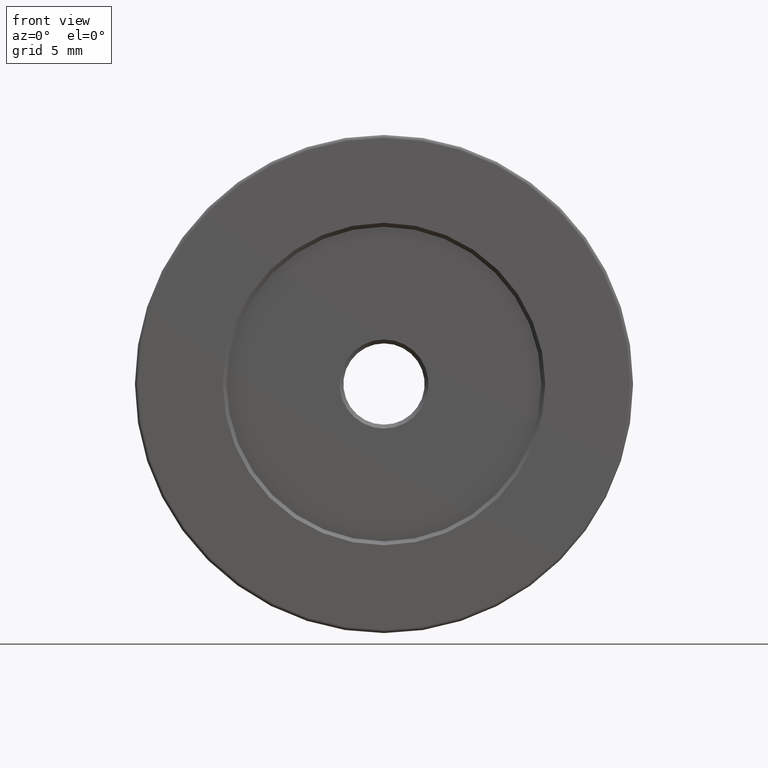
[diagram: clean part render]
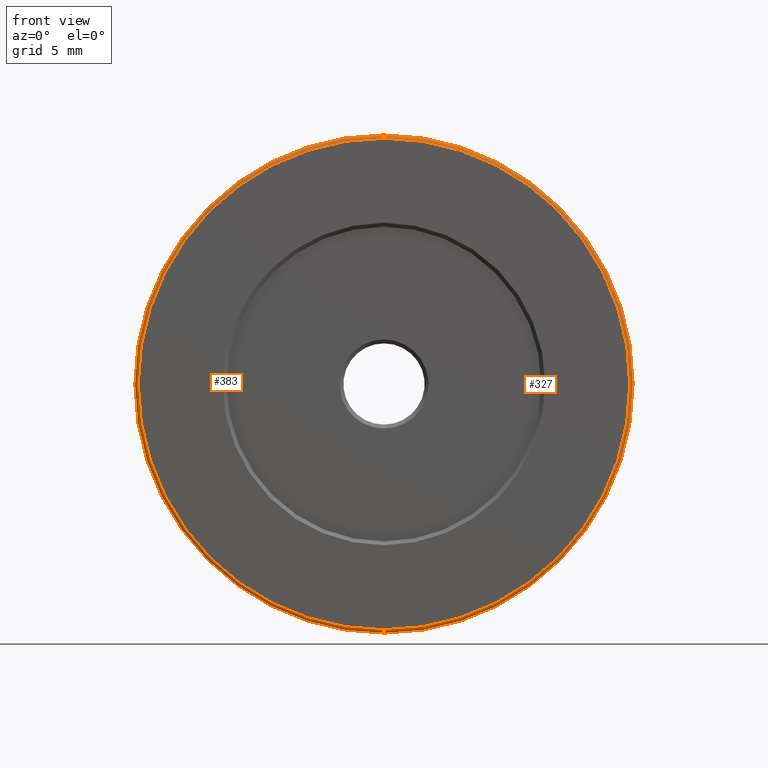
[diagram: same view with one multi-face feature highlighted, each face labeled with its STEP entity id]
A machine part, front view. The highlighted faces form ONE feature: a constant-radius fillet chain: 2 tangent blend faces with common blend radius 0.25 mm. The faces share edges in the B-rep.
Their STEP definitions:
[1] entity #383 (Torus):
#6 = AXIS2_PLACEMENT_3D ( 'NONE', #60, #158, #248 ) ;
#18 = EDGE_CURVE ( 'NONE', #72, #259, #290, .T. ) ;
#27 = CIRCLE ( 'NONE', #128, 0.2500000000000002220 ) ;
#28 = VERTEX_POINT ( 'NONE', #605 ) ;
#30 = DIRECTION ( 'NONE',  ( -1.000000000000000000, 0.000000000000000000, 0.000000000000000000 ) ) ;
#32 = DIRECTION ( 'NONE',  ( 0.000000000000000000, 1.000000000000000000, 0.000000000000000000 ) ) ;
#48 = CARTESIAN_POINT ( 'NONE',  ( -7.546808913101045846, -10.39359512730272783, 19.25000000000000000 ) ) ;
#60 = CARTESIAN_POINT ( 'NONE',  ( -7.546808913101045846, -10.14359512730272783, 19.25000000000000000 ) ) ;
#72 = VERTEX_POINT ( 'NONE', #154 ) ;
#88 = DIRECTION ( 'NONE',  ( 0.000000000000000000, 1.000000000000000000, 0.000000000000000000 ) ) ;
#89 = AXIS2_PLACEMENT_3D ( 'NONE', #269, #32, #453 ) ;
#128 = AXIS2_PLACEMENT_3D ( 'NONE', #448, #30, #469 ) ;
#131 = EDGE_CURVE ( 'NONE', #467, #72, #347, .T. ) ;
#140 = AXIS2_PLACEMENT_3D ( 'NONE', #566, #147, #585 ) ;
#147 = DIRECTION ( 'NONE',  ( -0.000000000000000000, -1.000000000000000000, -0.000000000000000000 ) ) ;
#154 = CARTESIAN_POINT ( 'NONE',  ( -7.546808913101048510, -10.14359512730272783, 19.00000000000000000 ) ) ;
#158 = DIRECTION ( 'NONE',  ( 1.000000000000000000, -0.000000000000000000, 1.224646799147353207E-16 ) ) ;
#215 = AXIS2_PLACEMENT_3D ( 'NONE', #552, #88, #273 ) ;
#248 = DIRECTION ( 'NONE',  ( 0.000000000000000000, 0.000000000000000000, -1.000000000000000000 ) ) ;
#259 = VERTEX_POINT ( 'NONE', #595 ) ;
#269 = CARTESIAN_POINT ( 'NONE',  ( -7.546808913101048510, -10.14359512730272783, 38.00000000000000000 ) ) ;
#273 = DIRECTION ( 'NONE',  ( 0.000000000000000000, 0.000000000000000000, 1.000000000000000000 ) ) ;
#290 = CIRCLE ( 'NONE', #89, 18.99999999999999645 ) ;
#316 = FACE_OUTER_BOUND ( 'NONE', #485, .T. ) ;
#347 = CIRCLE ( 'NONE', #6, 0.2500000000000002220 ) ;
#383 = ADVANCED_FACE ( 'NONE', ( #316 ), #498, .T. ) ;
#408 = EDGE_CURVE ( 'NONE', #28, #259, #27, .T. ) ;
#417 = CIRCLE ( 'NONE', #140, 18.74999999999999645 ) ;
#448 = CARTESIAN_POINT ( 'NONE',  ( -7.546808913101048510, -10.14359512730272783, 56.74999999999999289 ) ) ;
#453 = DIRECTION ( 'NONE',  ( 0.000000000000000000, 0.000000000000000000, 1.000000000000000000 ) ) ;
#467 = VERTEX_POINT ( 'NONE', #48 ) ;
#469 = DIRECTION ( 'NONE',  ( 0.000000000000000000, 0.000000000000000000, 1.000000000000000000 ) ) ;
#485 = EDGE_LOOP ( 'NONE', ( #492, #612, #533, #529 ) ) ;
#492 = ORIENTED_EDGE ( 'NONE', *, *, #131, .F. ) ;
#498 = TOROIDAL_SURFACE ( 'NONE', #215, 18.75000000000000000, 0.2500000000000000000 ) ;
#529 = ORIENTED_EDGE ( 'NONE', *, *, #18, .F. ) ;
#530 = EDGE_CURVE ( 'NONE', #28, #467, #417, .T. ) ;
#533 = ORIENTED_EDGE ( 'NONE', *, *, #408, .T. ) ;
#552 = CARTESIAN_POINT ( 'NONE',  ( -7.546808913101048510, -10.14359512730272783, 38.00000000000000000 ) ) ;
#566 = CARTESIAN_POINT ( 'NONE',  ( -7.546808913101048510, -10.39359512730272783, 38.00000000000000000 ) ) ;
#585 = DIRECTION ( 'NONE',  ( 0.000000000000000000, 0.000000000000000000, 1.000000000000000000 ) ) ;
#595 = CARTESIAN_POINT ( 'NONE',  ( -7.546808913101045846, -10.14359512730272783, 56.99999999999999289 ) ) ;
#605 = CARTESIAN_POINT ( 'NONE',  ( -7.546808913101048510, -10.39359512730272783, 56.74999999999999289 ) ) ;
#612 = ORIENTED_EDGE ( 'NONE', *, *, #530, .F. ) ;
[2] entity #327 (Torus):
#5 = ORIENTED_EDGE ( 'NONE', *, *, #519, .F. ) ;
#6 = AXIS2_PLACEMENT_3D ( 'NONE', #60, #158, #248 ) ;
#27 = CIRCLE ( 'NONE', #128, 0.2500000000000002220 ) ;
#28 = VERTEX_POINT ( 'NONE', #605 ) ;
#30 = DIRECTION ( 'NONE',  ( -1.000000000000000000, 0.000000000000000000, 0.000000000000000000 ) ) ;
#48 = CARTESIAN_POINT ( 'NONE',  ( -7.546808913101045846, -10.39359512730272783, 19.25000000000000000 ) ) ;
#60 = CARTESIAN_POINT ( 'NONE',  ( -7.546808913101045846, -10.14359512730272783, 19.25000000000000000 ) ) ;
#72 = VERTEX_POINT ( 'NONE', #154 ) ;
#79 = AXIS2_PLACEMENT_3D ( 'NONE', #280, #145, #562 ) ;
#106 = TOROIDAL_SURFACE ( 'NONE', #546, 18.75000000000000000, 0.2500000000000000000 ) ;
#128 = AXIS2_PLACEMENT_3D ( 'NONE', #448, #30, #469 ) ;
#131 = EDGE_CURVE ( 'NONE', #467, #72, #347, .T. ) ;
#136 = DIRECTION ( 'NONE',  ( 0.000000000000000000, 0.000000000000000000, 1.000000000000000000 ) ) ;
#145 = DIRECTION ( 'NONE',  ( 0.000000000000000000, 1.000000000000000000, 0.000000000000000000 ) ) ;
#154 = CARTESIAN_POINT ( 'NONE',  ( -7.546808913101048510, -10.14359512730272783, 19.00000000000000000 ) ) ;
#158 = DIRECTION ( 'NONE',  ( 1.000000000000000000, -0.000000000000000000, 1.224646799147353207E-16 ) ) ;
#199 = EDGE_LOOP ( 'NONE', ( #429, #256, #5, #293 ) ) ;
#248 = DIRECTION ( 'NONE',  ( 0.000000000000000000, 0.000000000000000000, -1.000000000000000000 ) ) ;
#256 = ORIENTED_EDGE ( 'NONE', *, *, #131, .T. ) ;
#259 = VERTEX_POINT ( 'NONE', #595 ) ;
#280 = CARTESIAN_POINT ( 'NONE',  ( -7.546808913101048510, -10.14359512730272783, 38.00000000000000000 ) ) ;
#293 = ORIENTED_EDGE ( 'NONE', *, *, #408, .F. ) ;
#311 = DIRECTION ( 'NONE',  ( -0.000000000000000000, -1.000000000000000000, -0.000000000000000000 ) ) ;
#312 = FACE_OUTER_BOUND ( 'NONE', #199, .T. ) ;
#327 = ADVANCED_FACE ( 'NONE', ( #312 ), #106, .T. ) ;
#335 = CIRCLE ( 'NONE', #79, 18.99999999999999645 ) ;
#346 = AXIS2_PLACEMENT_3D ( 'NONE', #451, #311, #136 ) ;
#347 = CIRCLE ( 'NONE', #6, 0.2500000000000002220 ) ;
#353 = DIRECTION ( 'NONE',  ( 0.000000000000000000, 1.000000000000000000, 0.000000000000000000 ) ) ;
#368 = EDGE_CURVE ( 'NONE', #467, #28, #534, .T. ) ;
#408 = EDGE_CURVE ( 'NONE', #28, #259, #27, .T. ) ;
#429 = ORIENTED_EDGE ( 'NONE', *, *, #368, .F. ) ;
#448 = CARTESIAN_POINT ( 'NONE',  ( -7.546808913101048510, -10.14359512730272783, 56.74999999999999289 ) ) ;
#451 = CARTESIAN_POINT ( 'NONE',  ( -7.546808913101048510, -10.39359512730272783, 38.00000000000000000 ) ) ;
#467 = VERTEX_POINT ( 'NONE', #48 ) ;
#469 = DIRECTION ( 'NONE',  ( 0.000000000000000000, 0.000000000000000000, 1.000000000000000000 ) ) ;
#519 = EDGE_CURVE ( 'NONE', #259, #72, #335, .T. ) ;
#534 = CIRCLE ( 'NONE', #346, 18.74999999999999645 ) ;
#546 = AXIS2_PLACEMENT_3D ( 'NONE', #586, #353, #593 ) ;
#562 = DIRECTION ( 'NONE',  ( 0.000000000000000000, 0.000000000000000000, 1.000000000000000000 ) ) ;
#586 = CARTESIAN_POINT ( 'NONE',  ( -7.546808913101048510, -10.14359512730272783, 38.00000000000000000 ) ) ;
#593 = DIRECTION ( 'NONE',  ( 0.000000000000000000, 0.000000000000000000, 1.000000000000000000 ) ) ;
#595 = CARTESIAN_POINT ( 'NONE',  ( -7.546808913101045846, -10.14359512730272783, 56.99999999999999289 ) ) ;
#605 = CARTESIAN_POINT ( 'NONE',  ( -7.546808913101048510, -10.39359512730272783, 56.74999999999999289 ) ) ;